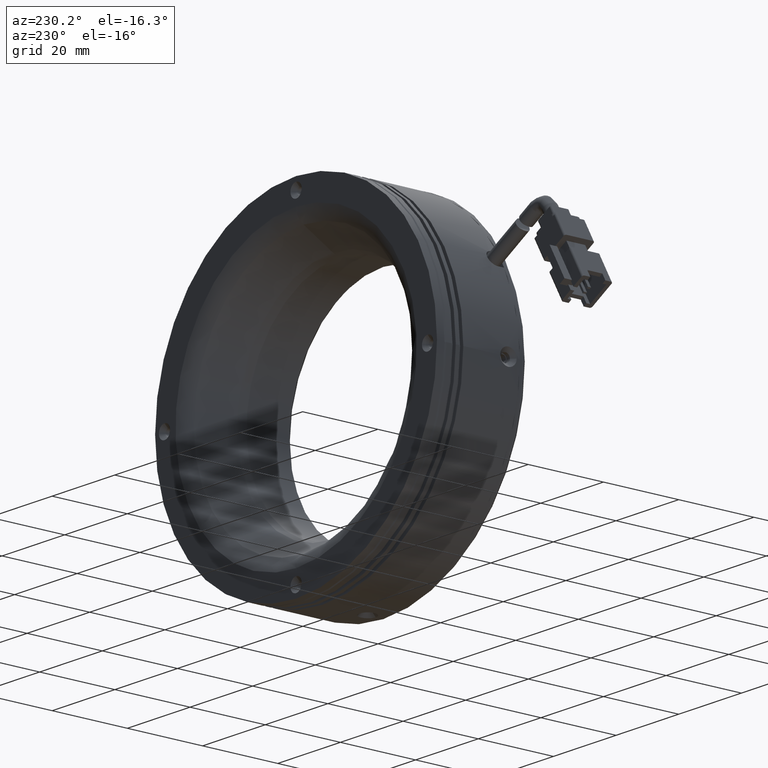
[diagram: clean part render]
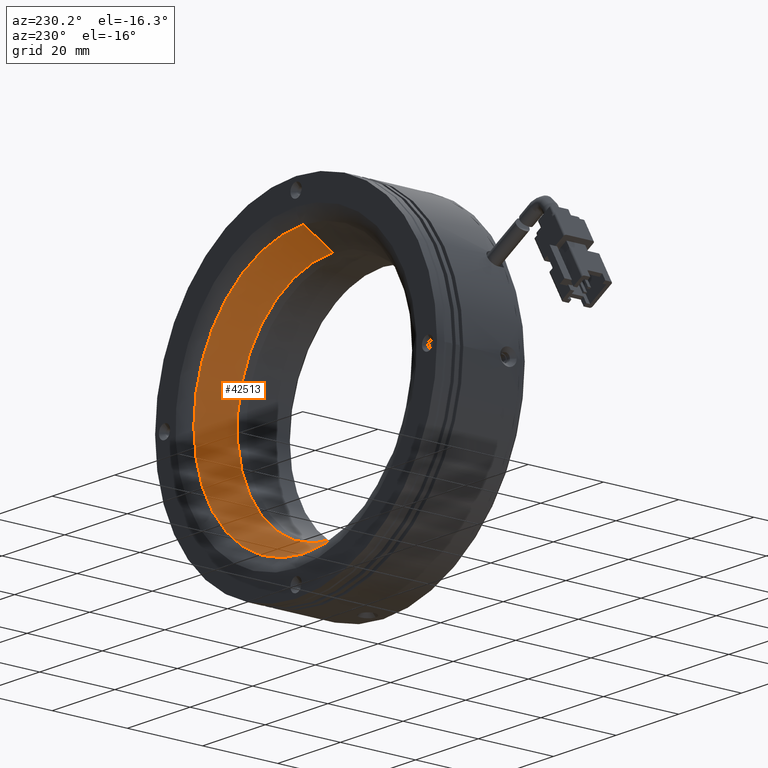
[diagram: same view with one face highlighted and labeled with its STEP entity id]
A machine part, auxiliary view. The second image highlights one B-rep face of the part: STEP entity #42513.
In plain terms, the highlighted conical surface has half-angle 30 deg.
Its self-contained STEP definition (entity closure, byte-faithful):
#1700 = VECTOR ( 'NONE', #22111, 1000.000000000000000 ) ;
#6138 = DIRECTION ( 'NONE',  ( 6.123233995736726600E-017, 0.8660254037844404800, -0.4999999999999967800 ) ) ;
#14187 = VERTEX_POINT ( 'NONE', #48481 ) ;
#15073 = CARTESIAN_POINT ( 'NONE',  ( -8.623327525382890700, 26.97360433553889400, 1.040834085586084300E-014 ) ) ;
#18837 = AXIS2_PLACEMENT_3D ( 'NONE', #124680, #105693, #28639 ) ;
#20214 = ORIENTED_EDGE ( 'NONE', *, *, #92941, .F. ) ;
#22111 = DIRECTION ( 'NONE',  ( 0.0000000000000000000, 0.8660254037844404800, 0.4999999999999967800 ) ) ;
#24809 = DIRECTION ( 'NONE',  ( 0.0000000000000000000, 0.0000000000000000000, 1.000000000000000000 ) ) ;
#28639 = DIRECTION ( 'NONE',  ( 0.0000000000000000000, 0.0000000000000000000, 1.000000000000000000 ) ) ;
#32173 = ORIENTED_EDGE ( 'NONE', *, *, #121252, .F. ) ;
#32503 = VERTEX_POINT ( 'NONE', #74260 ) ;
#32657 = EDGE_LOOP ( 'NONE', ( #32173, #20214, #53629, #36030 ) ) ;
#36030 = ORIENTED_EDGE ( 'NONE', *, *, #39361, .F. ) ;
#39361 = EDGE_CURVE ( 'NONE', #100978, #32503, #104686, .T. ) ;
#42513 = ADVANCED_FACE ( 'NONE', ( #49576 ), #88963, .F. ) ;
#45736 = DIRECTION ( 'NONE',  ( -0.0000000000000000000, 1.000000000000000000, -0.0000000000000000000 ) ) ;
#48481 = CARTESIAN_POINT ( 'NONE',  ( -8.623327525382890700, 19.17937570147887500, 30.53589838486225000 ) ) ;
#49576 = FACE_OUTER_BOUND ( 'NONE', #32657, .T. ) ;
#53629 = ORIENTED_EDGE ( 'NONE', *, *, #119565, .T. ) ;
#68684 = LINE ( 'NONE', #122123, #120258 ) ;
#74260 = CARTESIAN_POINT ( 'NONE',  ( -8.623327525382890700, 26.97360433553889400, 35.03589838486225000 ) ) ;
#75780 = LINE ( 'NONE', #79952, #1700 ) ;
#79952 = CARTESIAN_POINT ( 'NONE',  ( -8.623327525382890700, 26.97360433553889400, 35.03589838486225000 ) ) ;
#82649 = DIRECTION ( 'NONE',  ( 0.0000000000000000000, -1.000000000000000000, 0.0000000000000000000 ) ) ;
#88963 = CONICAL_SURFACE ( 'NONE', #18837, 35.03589838486223600, 0.5235987755982951500 ) ;
#92941 = EDGE_CURVE ( 'NONE', #14187, #122236, #121132, .T. ) ;
#94129 = AXIS2_PLACEMENT_3D ( 'NONE', #103787, #45736, #113512 ) ;
#100978 = VERTEX_POINT ( 'NONE', #104865 ) ;
#101995 = CARTESIAN_POINT ( 'NONE',  ( -8.623327525382887200, 19.17937570147887900, -30.53589838486222900 ) ) ;
#103787 = CARTESIAN_POINT ( 'NONE',  ( -8.623327525382890700, 19.17937570147887900, 1.040834085586084300E-014 ) ) ;
#104686 = CIRCLE ( 'NONE', #119685, 35.03589838486223600 ) ;
#104865 = CARTESIAN_POINT ( 'NONE',  ( -8.623327525382887200, 26.97360433553889400, -35.03589838486223600 ) ) ;
#105693 = DIRECTION ( 'NONE',  ( 0.0000000000000000000, 1.000000000000000000, 0.0000000000000000000 ) ) ;
#113512 = DIRECTION ( 'NONE',  ( 0.0000000000000000000, -1.136186303813987500E-016, 1.000000000000000000 ) ) ;
#119565 = EDGE_CURVE ( 'NONE', #14187, #32503, #75780, .T. ) ;
#119685 = AXIS2_PLACEMENT_3D ( 'NONE', #15073, #82649, #24809 ) ;
#120258 = VECTOR ( 'NONE', #6138, 1000.000000000000000 ) ;
#121132 = CIRCLE ( 'NONE', #94129, 30.53589838486223900 ) ;
#121252 = EDGE_CURVE ( 'NONE', #122236, #100978, #68684, .T. ) ;
#122123 = CARTESIAN_POINT ( 'NONE',  ( -8.623327525382887200, 26.97360433553889400, -35.03589838486223600 ) ) ;
#122236 = VERTEX_POINT ( 'NONE', #101995 ) ;
#124680 = CARTESIAN_POINT ( 'NONE',  ( -8.623327525382890700, 26.97360433553889400, 1.040834085586084300E-014 ) ) ;